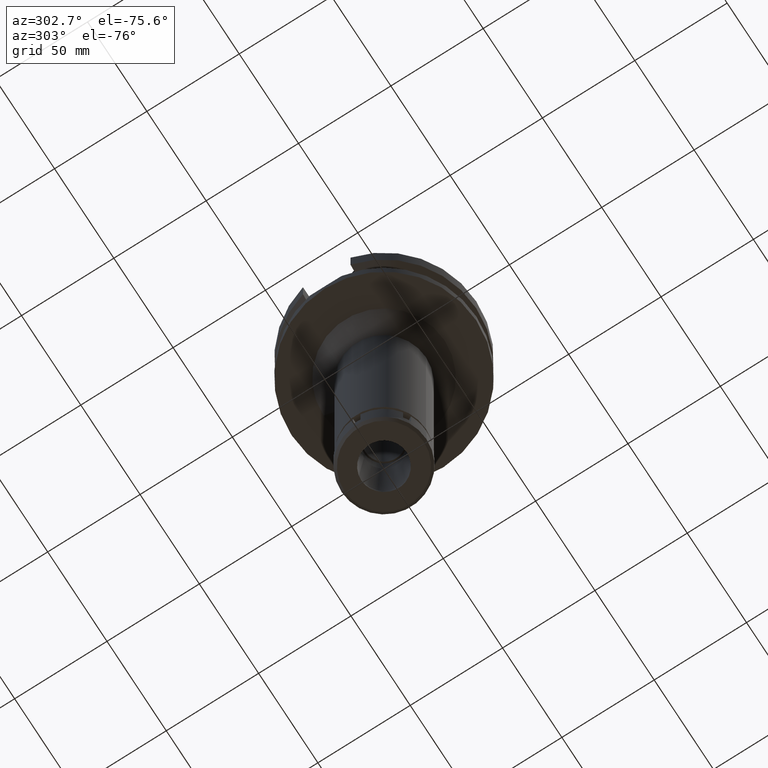
[diagram: clean part render]
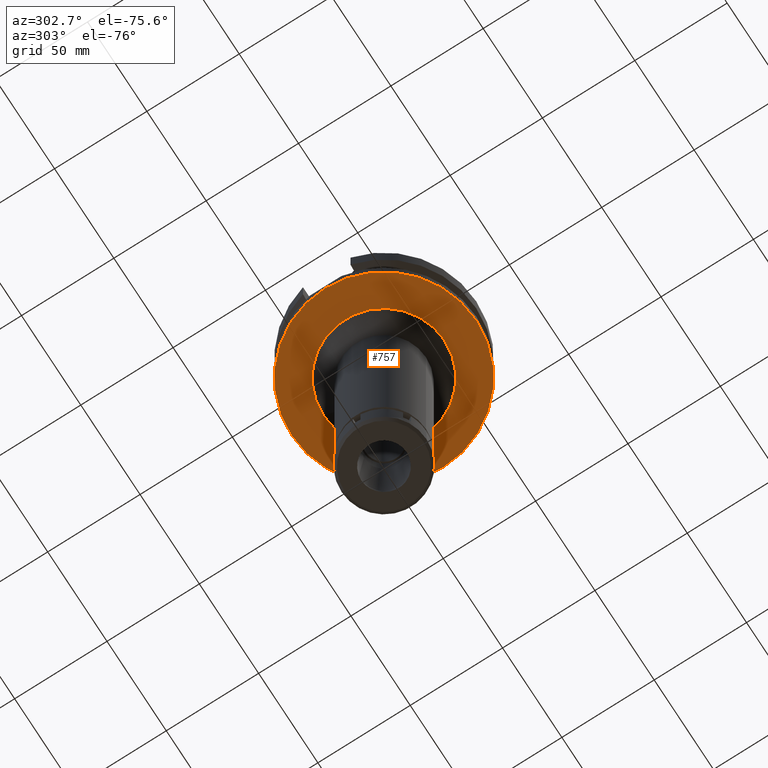
[diagram: same view with one face highlighted and labeled with its STEP entity id]
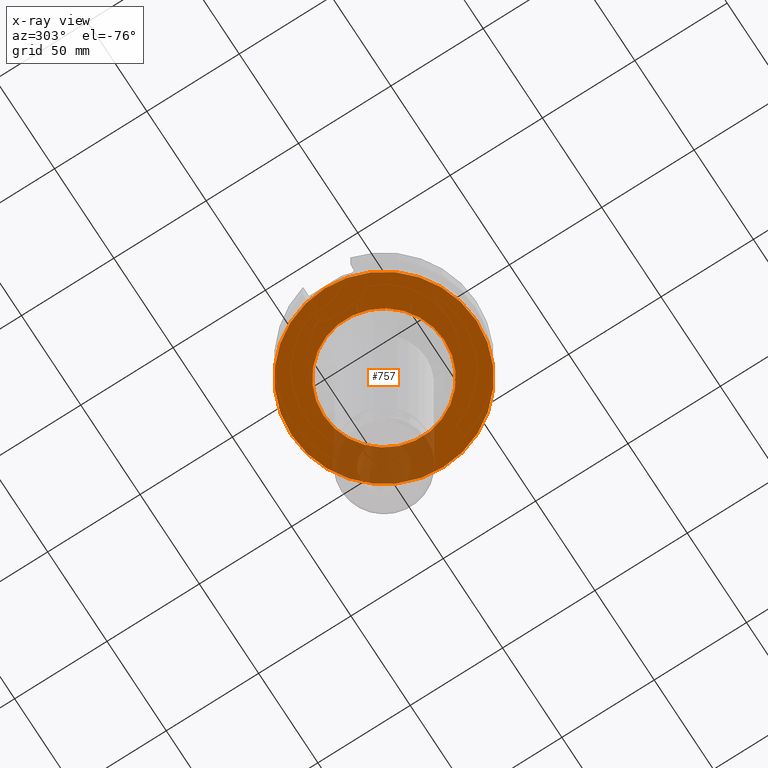
[diagram: x-ray of the same camera — body ghosted, the highlighted face saturated]
A machine part, auxiliary view. The second image highlights one B-rep face of the part: STEP entity #757.
The next image is the same camera in x-ray: the body ghosted, the highlighted face saturated — about 19% of this face is hidden behind the body in this view.
In plain terms, the highlighted planar face has unit normal (0, 0, -1).
Its self-contained STEP definition (entity closure, byte-faithful):
#4 = CARTESIAN_POINT ( 'NONE',  ( 0.0000000000000000000, 0.0000000000000000000, -38.00000000000000000 ) ) ;
#100 = ORIENTED_EDGE ( 'NONE', *, *, #1144, .F. ) ;
#317 = EDGE_CURVE ( 'NONE', #2645, #2537, #1382, .T. ) ;
#424 = CIRCLE ( 'NONE', #2860, 32.75000000000000000 ) ;
#742 = EDGE_LOOP ( 'NONE', ( #1448, #1852 ) ) ;
#757 = ADVANCED_FACE ( 'NONE', ( #2604, #893 ), #3128, .T. ) ;
#893 = FACE_BOUND ( 'NONE', #1481, .T. ) ;
#1104 = DIRECTION ( 'NONE',  ( 0.0000000000000000000, 0.0000000000000000000, 1.000000000000000000 ) ) ;
#1144 = EDGE_CURVE ( 'NONE', #2656, #2702, #2387, .T. ) ;
#1283 = CARTESIAN_POINT ( 'NONE',  ( 0.0000000000000000000, -50.00000000000000000, -38.00000000000000000 ) ) ;
#1382 = CIRCLE ( 'NONE', #2850, 50.00000000000000000 ) ;
#1386 = AXIS2_PLACEMENT_3D ( 'NONE', #4, #1466, #2272 ) ;
#1448 = ORIENTED_EDGE ( 'NONE', *, *, #317, .F. ) ;
#1466 = DIRECTION ( 'NONE',  ( 0.0000000000000000000, 0.0000000000000000000, -1.000000000000000000 ) ) ;
#1478 = DIRECTION ( 'NONE',  ( 0.0000000000000000000, 0.0000000000000000000, 1.000000000000000000 ) ) ;
#1481 = EDGE_LOOP ( 'NONE', ( #2435, #100 ) ) ;
#1660 = DIRECTION ( 'NONE',  ( 0.0000000000000000000, 0.0000000000000000000, -1.000000000000000000 ) ) ;
#1802 = DIRECTION ( 'NONE',  ( 0.0000000000000000000, 0.0000000000000000000, -1.000000000000000000 ) ) ;
#1852 = ORIENTED_EDGE ( 'NONE', *, *, #2365, .F. ) ;
#1932 = CARTESIAN_POINT ( 'NONE',  ( 0.0000000000000000000, 50.00000000000000000, -38.00000000000000000 ) ) ;
#1979 = CIRCLE ( 'NONE', #2627, 50.00000000000000000 ) ;
#1991 = DIRECTION ( 'NONE',  ( 0.0000000000000000000, -1.000000000000000000, 0.0000000000000000000 ) ) ;
#2100 = DIRECTION ( 'NONE',  ( 0.0000000000000000000, 1.000000000000000000, 0.0000000000000000000 ) ) ;
#2247 = DIRECTION ( 'NONE',  ( 0.0000000000000000000, 1.000000000000000000, 0.0000000000000000000 ) ) ;
#2272 = DIRECTION ( 'NONE',  ( 0.0000000000000000000, -1.000000000000000000, 0.0000000000000000000 ) ) ;
#2365 = EDGE_CURVE ( 'NONE', #2537, #2645, #1979, .T. ) ;
#2387 = CIRCLE ( 'NONE', #2681, 32.75000000000000000 ) ;
#2435 = ORIENTED_EDGE ( 'NONE', *, *, #2450, .F. ) ;
#2450 = EDGE_CURVE ( 'NONE', #2702, #2656, #424, .T. ) ;
#2462 = DIRECTION ( 'NONE',  ( 0.0000000000000000000, -1.000000000000000000, 0.0000000000000000000 ) ) ;
#2503 = CARTESIAN_POINT ( 'NONE',  ( 0.0000000000000000000, -32.75000000000000000, -38.00000000000000000 ) ) ;
#2537 = VERTEX_POINT ( 'NONE', #1283 ) ;
#2604 = FACE_OUTER_BOUND ( 'NONE', #742, .T. ) ;
#2627 = AXIS2_PLACEMENT_3D ( 'NONE', #3135, #1478, #1991 ) ;
#2645 = VERTEX_POINT ( 'NONE', #1932 ) ;
#2656 = VERTEX_POINT ( 'NONE', #2503 ) ;
#2681 = AXIS2_PLACEMENT_3D ( 'NONE', #3318, #1660, #2462 ) ;
#2702 = VERTEX_POINT ( 'NONE', #3008 ) ;
#2850 = AXIS2_PLACEMENT_3D ( 'NONE', #3404, #1104, #2247 ) ;
#2860 = AXIS2_PLACEMENT_3D ( 'NONE', #3552, #1802, #2100 ) ;
#3008 = CARTESIAN_POINT ( 'NONE',  ( 0.0000000000000000000, 32.75000000000000000, -38.00000000000000000 ) ) ;
#3128 = PLANE ( 'NONE',  #1386 ) ;
#3135 = CARTESIAN_POINT ( 'NONE',  ( 0.0000000000000000000, 2.651237855473999832E-14, -38.00000000000000000 ) ) ;
#3318 = CARTESIAN_POINT ( 'NONE',  ( 0.0000000000000000000, 0.0000000000000000000, -38.00000000000000000 ) ) ;
#3404 = CARTESIAN_POINT ( 'NONE',  ( 0.0000000000000000000, 2.651237855473999832E-14, -38.00000000000000000 ) ) ;
#3552 = CARTESIAN_POINT ( 'NONE',  ( 0.0000000000000000000, 0.0000000000000000000, -38.00000000000000000 ) ) ;